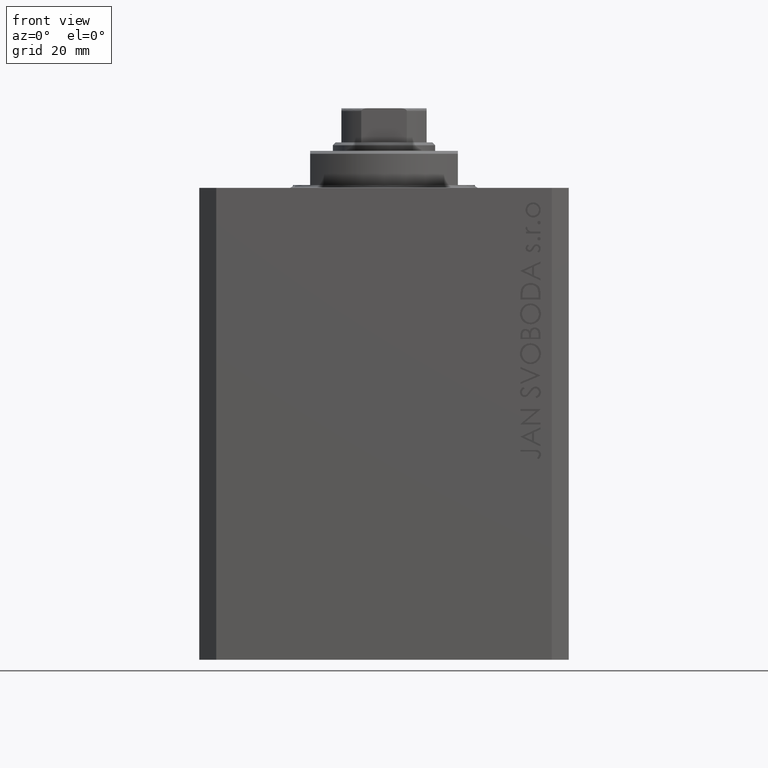
[diagram: clean part render]
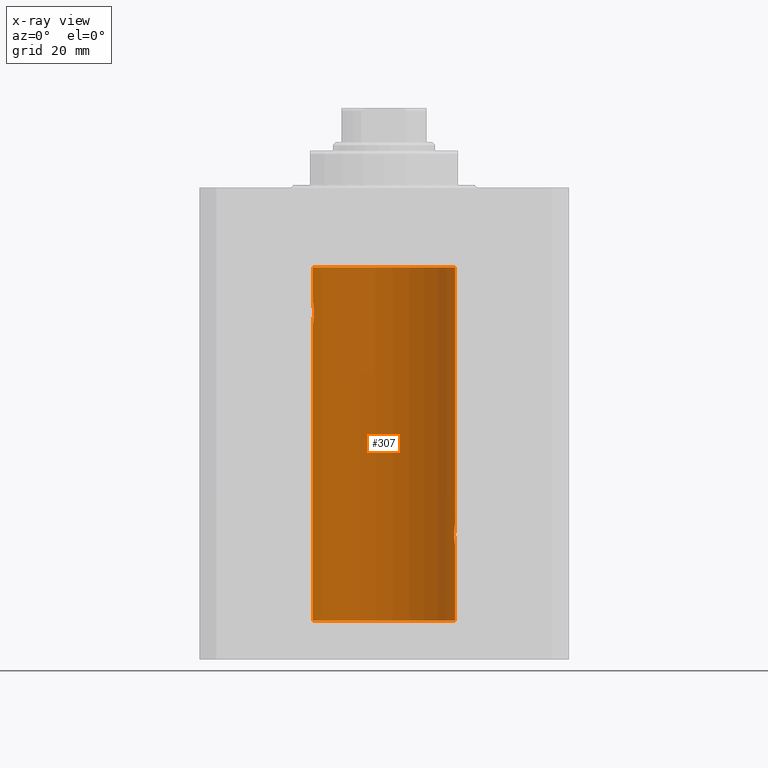
[diagram: x-ray — body ghosted, one internal face saturated and labeled with its STEP entity id]
A machine part, front view, then the same camera in x-ray: the body is ghosted and one INTERNAL B-rep face — a face not visible from any outside direction — is saturated and labeled: STEP entity #307.
In plain terms, the highlighted cylindrical surface (partial cylindrical patch) has radius 12.5 mm, axis along (0, 0, 1).
Its self-contained STEP definition (entity closure, byte-faithful):
#307 = ADVANCED_FACE ( 'NONE', ( #38960 ), #9644, .F. ) ;
#595 = EDGE_CURVE ( 'NONE', #21754, #37307, #34215, .T. ) ;
#799 = CARTESIAN_POINT ( 'NONE',  ( 12.44079900692650931, 1.220007525301743723, -62.59017579083667471 ) ) ;
#1020 = CARTESIAN_POINT ( 'NONE',  ( -12.43034574091277911, 1.321095788880539024, -23.50733550364322255 ) ) ;
#1491 = CARTESIAN_POINT ( 'NONE',  ( -12.37922086519035325, 1.734998657226764829, -23.00335814299181436 ) ) ;
#2448 = CARTESIAN_POINT ( 'NONE',  ( 12.37760587642915944, 1.747868572747724114, -62.00639653168998677 ) ) ;
#2738 = CARTESIAN_POINT ( 'NONE',  ( 12.37925647381943506, 1.734744884174226121, -59.99620732598650363 ) ) ;
#4461 = ORIENTED_EDGE ( 'NONE', *, *, #39296, .T. ) ;
#4841 = CARTESIAN_POINT ( 'NONE',  ( -12.50000000000000000, 1.530808426276628993E-15, -23.99999999999999645 ) ) ;
#4905 = DIRECTION ( 'NONE',  ( 0.000000000000000000, 0.000000000000000000, 1.000000000000000000 ) ) ;
#5072 = CARTESIAN_POINT ( 'NONE',  ( -12.33897869807161385, 1.999901172190678089, -21.73788193668374547 ) ) ;
#5328 = CARTESIAN_POINT ( 'NONE',  ( 12.50000000000000178, 0.1324055009716470499, -63.00000000000002842 ) ) ;
#5752 = ORIENTED_EDGE ( 'NONE', *, *, #18021, .T. ) ;
#6024 = CARTESIAN_POINT ( 'NONE',  ( 12.39869754437268412, 1.598954131913729482, -62.22932152813012152 ) ) ;
#6296 = CARTESIAN_POINT ( 'NONE',  ( 0.000000000000000000, 0.000000000000000000, -76.09999999999999432 ) ) ;
#6803 = CARTESIAN_POINT ( 'NONE',  ( 12.49788668346400122, 0.2632864803365690398, -59.01308975838333737 ) ) ;
#7271 = CARTESIAN_POINT ( 'NONE',  ( 12.35520276972935250, 1.897773362058245983, -60.35528278634337340 ) ) ;
#7345 = CARTESIAN_POINT ( 'NONE',  ( 12.50000000000000000, 0.000000000000000000, -13.99999999999999822 ) ) ;
#7957 = CARTESIAN_POINT ( 'NONE',  ( -12.50000000000000000, 1.530808498934191521E-15, -76.09999999999999432 ) ) ;
#7978 = ORIENTED_EDGE ( 'NONE', *, *, #42607, .F. ) ;
#8017 = AXIS2_PLACEMENT_3D ( 'NONE', #37810, #4905, #30427 ) ;
#8156 = EDGE_LOOP ( 'NONE', ( #7978, #36838, #5752, #14789, #16670, #4461, #10140, #33150, #40722 ) ) ;
#8185 = CARTESIAN_POINT ( 'NONE',  ( 12.50000000000000000, 0.000000000000000000, -76.09999999999999432 ) ) ;
#8197 = CARTESIAN_POINT ( 'NONE',  ( -12.39873273758732175, 1.598680238462371062, -20.77033506126851137 ) ) ;
#8211 = CARTESIAN_POINT ( 'NONE',  ( 12.48390005916863288, 0.6457215011736548993, -62.89742771554268330 ) ) ;
#8432 = CARTESIAN_POINT ( 'NONE',  ( -12.46909283808506430, 0.8868029758979402155, -23.79742491916155345 ) ) ;
#8689 = CARTESIAN_POINT ( 'NONE',  ( -12.50000000000000000, 1.530808498934191521E-15, -13.99999999999999822 ) ) ;
#8834 = DIRECTION ( 'NONE',  ( 1.000000000000000000, 0.000000000000000000, 0.000000000000000000 ) ) ;
#8897 = CARTESIAN_POINT ( 'NONE',  ( -12.50000000000000533, 0.1306394121199390135, -24.00000000000000711 ) ) ;
#9382 = DIRECTION ( 'NONE',  ( -0.000000000000000000, -0.000000000000000000, 1.000000000000000000 ) ) ;
#9644 = CYLINDRICAL_SURFACE ( 'NONE', #9832, 12.50000000000000000 ) ;
#9832 = AXIS2_PLACEMENT_3D ( 'NONE', #6296, #21067, #20836 ) ;
#9990 = VECTOR ( 'NONE', #9382, 1000.000000000000000 ) ;
#10140 = ORIENTED_EDGE ( 'NONE', *, *, #24955, .T. ) ;
#10623 = B_SPLINE_CURVE_WITH_KNOTS ( 'NONE', 3,
 ( #28985, #35895, #21103, #32087, #7271, #39936, #2738, #17285, #17753, #32555, #28754, #38995, #32787, #46637, #21572, #6803, #36360, #13708 ),
 .UNSPECIFIED., .F., .F.,
 ( 4, 2, 2, 2, 2, 2, 2, 2, 4 ),
 ( 0.003132244164174478006, 0.003523586189974254636, 0.003914928215774030398, 0.004306270241573807028, 0.004697612267373583658, 0.005088954293173359421, 0.005480296318973136051, 0.005871638344772912681, 0.006262980370572688443 ),
 .UNSPECIFIED. ) ;
#10944 = EDGE_CURVE ( 'NONE', #16286, #40185, #27506, .T. ) ;
#12469 = CARTESIAN_POINT ( 'NONE',  ( -12.37764291807175354, 1.747608771958140794, -20.99316879552500481 ) ) ;
#13190 = LINE ( 'NONE', #13645, #9990 ) ;
#13635 = AXIS2_PLACEMENT_3D ( 'NONE', #31007, #41270, #8834 ) ;
#13645 = CARTESIAN_POINT ( 'NONE',  ( -12.50000000000000000, 1.530808498934191521E-15, -76.09999999999999432 ) ) ;
#13708 = CARTESIAN_POINT ( 'NONE',  ( 12.50000000000000000, -7.266276684081261841E-23, -59.00000000000000711 ) ) ;
#14789 = ORIENTED_EDGE ( 'NONE', *, *, #10944, .T. ) ;
#15191 = VERTEX_POINT ( 'NONE', #23674 ) ;
#15349 = CARTESIAN_POINT ( 'NONE',  ( -12.48990118705761532, 0.5184196815546056047, -20.06395648222637007 ) ) ;
#15583 = CARTESIAN_POINT ( 'NONE',  ( -12.46009879577771606, 1.003863686549169465, -23.73470742397611843 ) ) ;
#15636 = CIRCLE ( 'NONE', #8017, 12.50000000000000000 ) ;
#16286 = VERTEX_POINT ( 'NONE', #36578 ) ;
#16670 = ORIENTED_EDGE ( 'NONE', *, *, #46906, .T. ) ;
#16758 = CARTESIAN_POINT ( 'NONE',  ( -12.50000000000000000, 1.530808498934191521E-15, -76.09999999999999432 ) ) ;
#17285 = CARTESIAN_POINT ( 'NONE',  ( 12.39867611624532806, 1.590019252152835794, -59.77984495929611342 ) ) ;
#17339 = VERTEX_POINT ( 'NONE', #27979 ) ;
#17753 = CARTESIAN_POINT ( 'NONE',  ( 12.40916530024876963, 1.507117913375720208, -59.67865955049006743 ) ) ;
#18021 = EDGE_CURVE ( 'NONE', #21754, #16286, #33837, .T. ) ;
#18101 = VERTEX_POINT ( 'NONE', #31438 ) ;
#19149 = CARTESIAN_POINT ( 'NONE',  ( -12.34922241902463114, 1.935814255713574239, -22.51937350851555308 ) ) ;
#19621 = CARTESIAN_POINT ( 'NONE',  ( -12.34109209020652465, 1.986986967296539897, -22.26269462454597914 ) ) ;
#19857 = CARTESIAN_POINT ( 'NONE',  ( -12.49789934882883458, 0.2624928479599910047, -20.01301208516349917 ) ) ;
#19945 = DIRECTION ( 'NONE',  ( -0.000000000000000000, -0.000000000000000000, 1.000000000000000000 ) ) ;
#20836 = DIRECTION ( 'NONE',  ( 1.000000000000000000, 0.000000000000000000, 0.000000000000000000 ) ) ;
#21067 = DIRECTION ( 'NONE',  ( -0.000000000000000000, -0.000000000000000000, 1.000000000000000000 ) ) ;
#21103 = CARTESIAN_POINT ( 'NONE',  ( 12.34110728646152211, 1.986893050944461336, -60.73661347764981855 ) ) ;
#21572 = CARTESIAN_POINT ( 'NONE',  ( 12.48983962833819028, 0.5199974825204892737, -59.06435160808017315 ) ) ;
#21754 = VERTEX_POINT ( 'NONE', #8185 ) ;
#21763 = VECTOR ( 'NONE', #43500, 1000.000000000000000 ) ;
#22732 = CARTESIAN_POINT ( 'NONE',  ( -12.33895470450623044, 2.000049200055401766, -22.12992629360264729 ) ) ;
#22970 = CARTESIAN_POINT ( 'NONE',  ( -12.50000000000000000, 1.867773856434666690E-17, -20.00000000000000000 ) ) ;
#23005 = EDGE_CURVE ( 'NONE', #15191, #47245, #40633, .T. ) ;
#23203 = CARTESIAN_POINT ( 'NONE',  ( -12.46903010196599304, 0.8876934327478135378, -20.20300788371381984 ) ) ;
#23455 = CARTESIAN_POINT ( 'NONE',  ( 12.46019522898365395, 1.002712894177339553, -62.73540896027603253 ) ) ;
#23674 = CARTESIAN_POINT ( 'NONE',  ( -12.50000000000000000, 1.867773856434666690E-17, -20.00000000000000000 ) ) ;
#24955 = EDGE_CURVE ( 'NONE', #45506, #47245, #15636, .T. ) ;
#26325 = CARTESIAN_POINT ( 'NONE',  ( -12.44082361696003503, 1.219754986802281449, -20.40963319990594016 ) ) ;
#26558 = CARTESIAN_POINT ( 'NONE',  ( -12.43019346654084956, 1.322451657002078340, -20.49398366327208620 ) ) ;
#27029 = CARTESIAN_POINT ( 'NONE',  ( -12.44076681548080288, 1.220297236145718944, -23.58991408680628155 ) ) ;
#27267 = B_SPLINE_CURVE_WITH_KNOTS ( 'NONE', 3,
 ( #22970, #41095, #19857, #15349, #37748, #23203, #44463, #26325, #26558, #8197, #12469, #30602, #5072, #22732, #19621, #19149, #34170, #37289, #1491, #33712, #45155, #1020, #27029, #15583, #8432, #37522, #30139, #41572, #8897, #4841 ),
 .UNSPECIFIED., .F., .F.,
 ( 4, 2, 2, 2, 2, 2, 2, 2, 2, 2, 2, 2, 2, 2, 4 ),
 ( 1.814683826656258666E-20, 0.0003914362731607577369, 0.0007828725463215154739, 0.001174308819482273265, 0.001565745092643030948, 0.002348617638964546530, 0.003131490185286061895, 0.003522926458446825216, 0.003914362731607588103, 0.004305799004768351423, 0.004697235277929114744, 0.005088671551089878065, 0.005480107824250641385, 0.005871544097411404706, 0.006262980370572168026 ),
 .UNSPECIFIED. ) ;
#27506 = B_SPLINE_CURVE_WITH_KNOTS ( 'NONE', 3,
 ( #41349, #5328, #41107, #33486, #8211, #33950, #23455, #799, #35590, #6024, #2448, #45641, #27754, #42988 ),
 .UNSPECIFIED., .F., .F.,
 ( 4, 2, 2, 2, 2, 2, 4 ),
 ( 1.801500038096735494E-18, 0.0003915305205218005350, 0.0007830610410435993353, 0.001174591561565397919, 0.001566122082087196719, 0.002349183123130837471, 0.003132244164174478006 ),
 .UNSPECIFIED. ) ;
#27754 = CARTESIAN_POINT ( 'NONE',  ( 12.33896267925302048, 2.000000000000254463, -61.26143174220783294 ) ) ;
#27979 = CARTESIAN_POINT ( 'NONE',  ( -12.50000000000000000, 1.530808426276628993E-15, -23.99999999999999645 ) ) ;
#28123 = CARTESIAN_POINT ( 'NONE',  ( 12.33896267925302581, 2.000000000000254907, -61.00000000000000711 ) ) ;
#28754 = CARTESIAN_POINT ( 'NONE',  ( 12.44079117518645461, 1.220047488436369010, -59.40989676335083658 ) ) ;
#28985 = CARTESIAN_POINT ( 'NONE',  ( 12.33896267925302581, 2.000000000000254907, -61.00000000000000711 ) ) ;
#30139 = CARTESIAN_POINT ( 'NONE',  ( -12.48983485452574982, 0.5201193324741355539, -23.93561774521849372 ) ) ;
#30427 = DIRECTION ( 'NONE',  ( 1.000000000000000000, 0.000000000000000000, 0.000000000000000000 ) ) ;
#30496 = DIRECTION ( 'NONE',  ( -0.000000000000000000, -0.000000000000000000, 1.000000000000000000 ) ) ;
#30602 = CARTESIAN_POINT ( 'NONE',  ( -12.34781876294798053, 1.947190906025043633, -21.47436412829509678 ) ) ;
#31007 = CARTESIAN_POINT ( 'NONE',  ( 0.000000000000000000, 0.000000000000000000, -76.09999999999999432 ) ) ;
#31438 = CARTESIAN_POINT ( 'NONE',  ( 12.50000000000000000, -7.266276684081261841E-23, -59.00000000000000711 ) ) ;
#32087 = CARTESIAN_POINT ( 'NONE',  ( 12.34924836377099844, 1.935649219704940194, -60.48002062127164180 ) ) ;
#32555 = CARTESIAN_POINT ( 'NONE',  ( 12.43037348241797879, 1.320834183883841773, -59.49243837704293725 ) ) ;
#32787 = CARTESIAN_POINT ( 'NONE',  ( 12.46910683544638232, 0.8866026273585040363, -59.20247863689694157 ) ) ;
#33150 = ORIENTED_EDGE ( 'NONE', *, *, #23005, .F. ) ;
#33486 = CARTESIAN_POINT ( 'NONE',  ( 12.48989642018887558, 0.5185418732824271792, -62.93601292187609175 ) ) ;
#33712 = CARTESIAN_POINT ( 'NONE',  ( -12.39864157855465088, 1.590288205413973532, -23.21980790594580313 ) ) ;
#33837 = LINE ( 'NONE', #45050, #40834 ) ;
#33950 = CARTESIAN_POINT ( 'NONE',  ( 12.46901623405144122, 0.8878913781257908866, -62.79689651717550447 ) ) ;
#34170 = CARTESIAN_POINT ( 'NONE',  ( -12.35517291625592051, 1.897967064543089721, -22.64415233770293412 ) ) ;
#34215 = CIRCLE ( 'NONE', #13635, 12.50000000000000000 ) ;
#35590 = CARTESIAN_POINT ( 'NONE',  ( 12.43016561391612917, 1.322713721413885990, -62.50578877836700542 ) ) ;
#35895 = CARTESIAN_POINT ( 'NONE',  ( 12.33896267925302226, 2.000000000000254463, -60.86934705949918367 ) ) ;
#36360 = CARTESIAN_POINT ( 'NONE',  ( 12.50000000000000000, 0.1306079576516673002, -59.00000000000000000 ) ) ;
#36389 = EDGE_CURVE ( 'NONE', #15191, #17339, #27267, .T. ) ;
#36578 = CARTESIAN_POINT ( 'NONE',  ( 12.50000000000000000, 1.854204365574248967E-15, -63.00000000000001421 ) ) ;
#36838 = ORIENTED_EDGE ( 'NONE', *, *, #595, .F. ) ;
#37289 = CARTESIAN_POINT ( 'NONE',  ( -12.37018026341338839, 1.797558627508998086, -22.88656313533016373 ) ) ;
#37307 = VERTEX_POINT ( 'NONE', #16758 ) ;
#37522 = CARTESIAN_POINT ( 'NONE',  ( -12.48394649977302073, 0.6448065707253024526, -23.89773031393659153 ) ) ;
#37748 = CARTESIAN_POINT ( 'NONE',  ( -12.48390768591463207, 0.6455696738844916016, -20.10252270298193977 ) ) ;
#37810 = CARTESIAN_POINT ( 'NONE',  ( 0.000000000000000000, 0.000000000000000000, -13.99999999999999822 ) ) ;
#38071 = CARTESIAN_POINT ( 'NONE',  ( 12.50000000000000000, 0.000000000000000000, -76.09999999999999432 ) ) ;
#38960 = FACE_OUTER_BOUND ( 'NONE', #8156, .T. ) ;
#38995 = CARTESIAN_POINT ( 'NONE',  ( 12.46011632531799407, 1.003644408234883212, -59.26516799687669135 ) ) ;
#39296 = EDGE_CURVE ( 'NONE', #18101, #45506, #45004, .T. ) ;
#39936 = CARTESIAN_POINT ( 'NONE',  ( 12.37021546997940113, 1.797317011867410441, -60.11295119741078707 ) ) ;
#40185 = VERTEX_POINT ( 'NONE', #28123 ) ;
#40633 = LINE ( 'NONE', #7957, #21763 ) ;
#40722 = ORIENTED_EDGE ( 'NONE', *, *, #36389, .T. ) ;
#40834 = VECTOR ( 'NONE', #30496, 1000.000000000000000 ) ;
#41095 = CARTESIAN_POINT ( 'NONE',  ( -12.50000000000000000, 0.1323736289504353625, -20.00000000000000000 ) ) ;
#41107 = CARTESIAN_POINT ( 'NONE',  ( 12.49789833780794623, 0.2625555164371027872, -62.98698170822147802 ) ) ;
#41270 = DIRECTION ( 'NONE',  ( 0.000000000000000000, 0.000000000000000000, 1.000000000000000000 ) ) ;
#41349 = CARTESIAN_POINT ( 'NONE',  ( 12.50000000000000000, 1.854204365574248967E-15, -63.00000000000001421 ) ) ;
#41572 = CARTESIAN_POINT ( 'NONE',  ( -12.49788564268284041, 0.2633501011236127343, -23.98690384766255335 ) ) ;
#42607 = EDGE_CURVE ( 'NONE', #37307, #17339, #13190, .T. ) ;
#42988 = CARTESIAN_POINT ( 'NONE',  ( 12.33896267925302581, 2.000000000000254907, -61.00000000000000711 ) ) ;
#43500 = DIRECTION ( 'NONE',  ( -0.000000000000000000, -0.000000000000000000, 1.000000000000000000 ) ) ;
#44463 = CARTESIAN_POINT ( 'NONE',  ( -12.46021263690096958, 1.002494658017156981, -20.26446744561863156 ) ) ;
#45004 = LINE ( 'NONE', #38071, #46424 ) ;
#45050 = CARTESIAN_POINT ( 'NONE',  ( 12.50000000000000000, 0.000000000000000000, -76.09999999999999432 ) ) ;
#45155 = CARTESIAN_POINT ( 'NONE',  ( -12.40913174964213184, 1.507394620545641439, -23.32102833500698225 ) ) ;
#45506 = VERTEX_POINT ( 'NONE', #7345 ) ;
#45641 = CARTESIAN_POINT ( 'NONE',  ( 12.34779119491630972, 1.947363444907015184, -61.52502775168252924 ) ) ;
#46424 = VECTOR ( 'NONE', #19945, 1000.000000000000000 ) ;
#46637 = CARTESIAN_POINT ( 'NONE',  ( 12.48395395845270528, 0.6446573166014695211, -59.10222124213521511 ) ) ;
#46906 = EDGE_CURVE ( 'NONE', #40185, #18101, #10623, .T. ) ;
#47245 = VERTEX_POINT ( 'NONE', #8689 ) ;